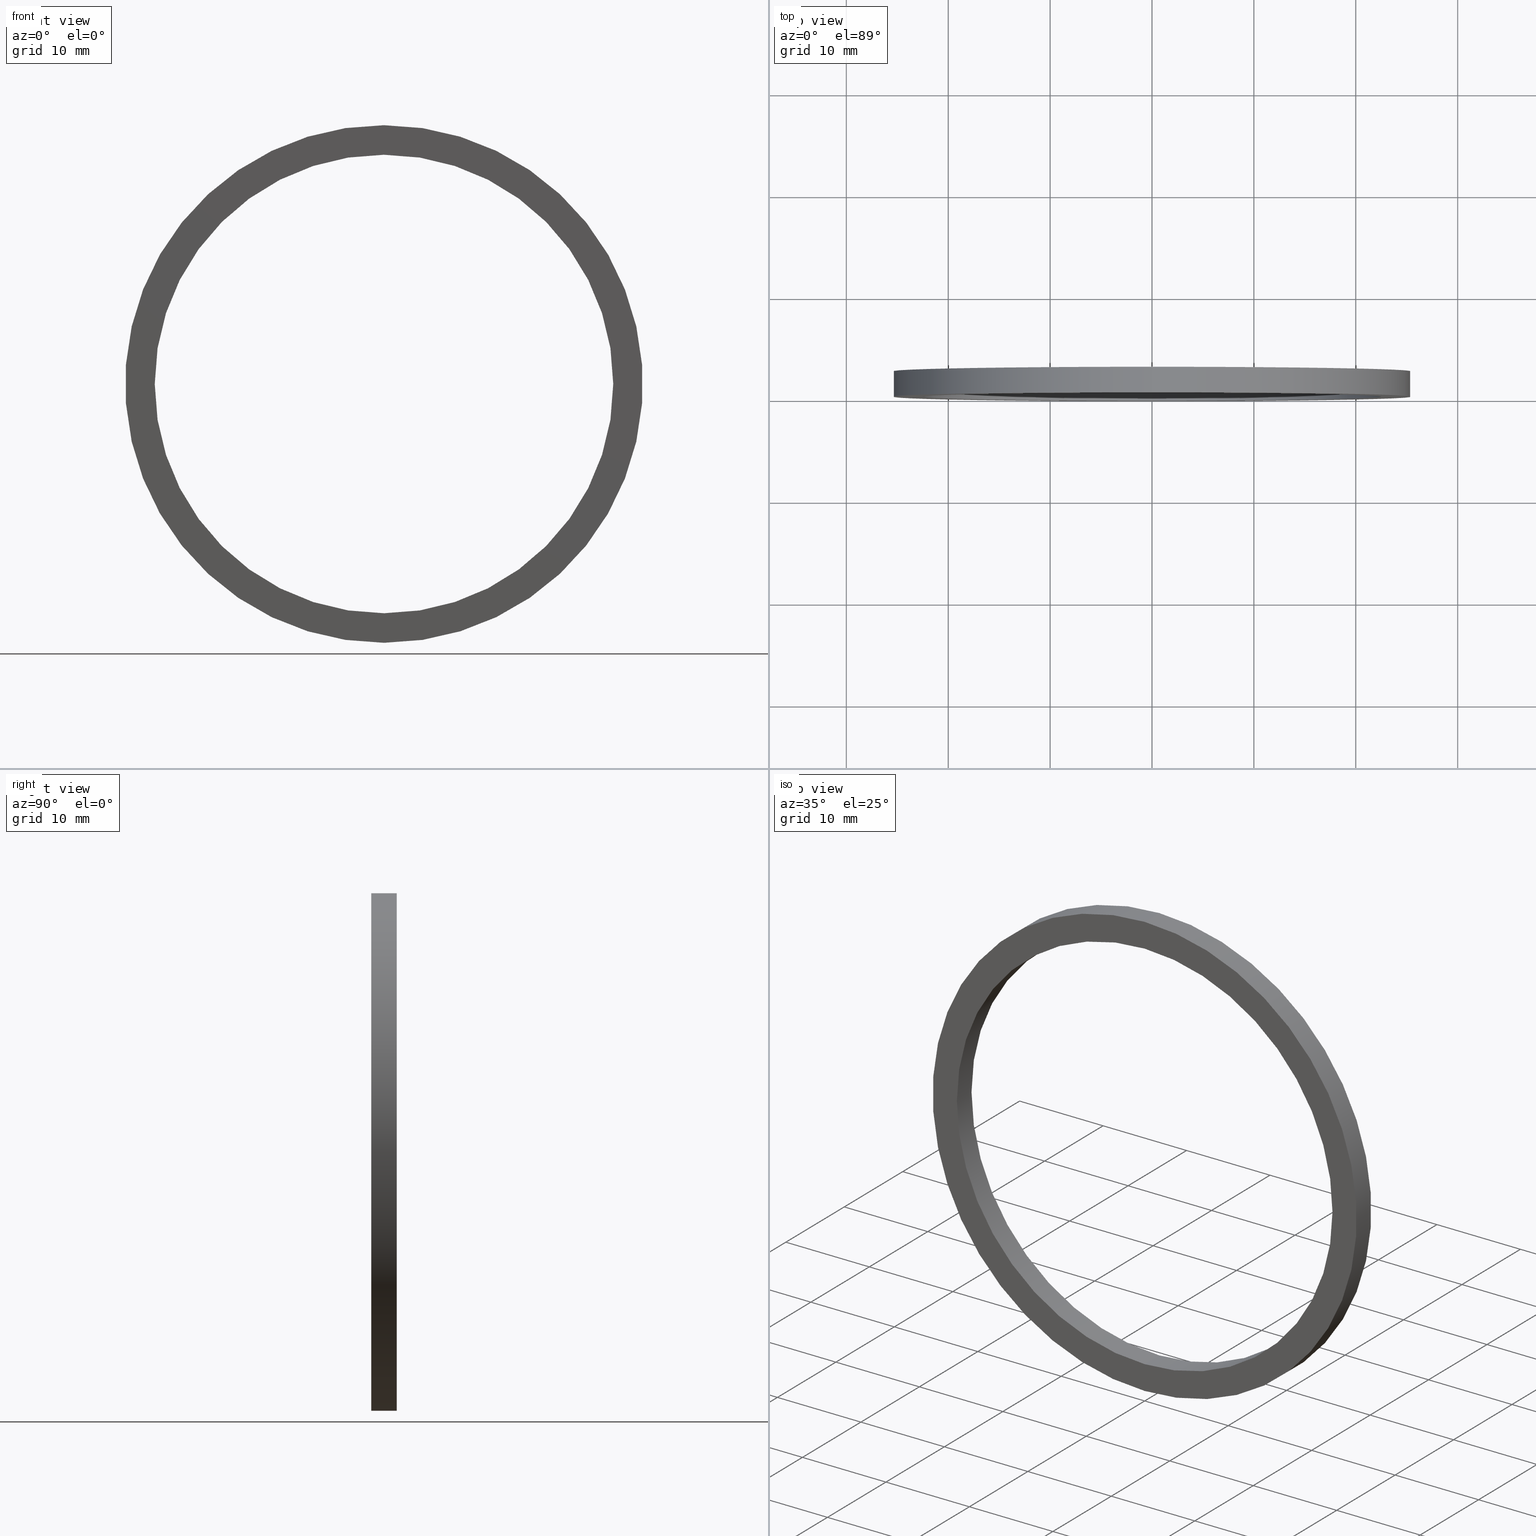
[diagram: canonical four-view strip — front | top / right | iso, engineering-drawing reading convention]
A machine part, canonical four-view strip (front | top / right | iso — engineering-drawing reading convention). The complete STEP part file that produces these views, byte-faithful:
ISO-10303-21;
HEADER;
FILE_DESCRIPTION (( 'STEP AP214' ),
    '1' );
FILE_NAME ('511001.STEP',
    '2019-09-12T07:37:06',
    ( '' ),
    ( '' ),
    'SwSTEP 2.0',
    'SolidWorks 2016',
    '' );
FILE_SCHEMA (( 'AUTOMOTIVE_DESIGN' ));
ENDSEC;

DATA;
#1 = DIRECTION ( 'NONE',  ( -0.0000000000000000000, 1.000000000000000000, -0.0000000000000000000 ) ) ;
#2 = DIRECTION ( 'NONE',  ( 1.000000000000000000, 0.0000000000000000000, 0.0000000000000000000 ) ) ;
#3 = FILL_AREA_STYLE ('',( #57 ) ) ;
#4 = CIRCLE ( 'NONE', #59, 25.40000000000000900 ) ;
#5 =( LENGTH_UNIT ( ) NAMED_UNIT ( * ) SI_UNIT ( .MILLI., .METRE. ) );
#6 = AXIS2_PLACEMENT_3D ( 'NONE', #29, #72, #202 ) ;
#7 = VERTEX_POINT ( 'NONE', #132 ) ;
#8 = COLOUR_RGB ( '',1.000000000000000000, 1.000000000000000000, 1.000000000000000000 ) ;
#9 = ORIENTED_EDGE ( 'NONE', *, *, #184, .F. ) ;
#10 = MECHANICAL_DESIGN_GEOMETRIC_PRESENTATION_REPRESENTATION (  '', ( #51 ), #73 ) ;
#11 = SURFACE_STYLE_FILL_AREA ( #135 ) ;
#12 = PRESENTATION_LAYER_ASSIGNMENT (  '', '', ( #51 ) ) ;
#13 = SURFACE_SIDE_STYLE ('',( #11 ) ) ;
#14 = DIRECTION ( 'NONE',  ( 0.0000000000000000000, 0.0000000000000000000, 1.000000000000000000 ) ) ;
#15 = DIRECTION ( 'NONE',  ( -0.0000000000000000000, 1.000000000000000000, -0.0000000000000000000 ) ) ;
#16 = UNCERTAINTY_MEASURE_WITH_UNIT (LENGTH_MEASURE( 1.000000000000000100E-005 ), #70, 'distance_accuracy_value', 'NONE');
#17 = PRESENTATION_LAYER_ASSIGNMENT (  '', '', ( #146 ) ) ;
#18 = SURFACE_SIDE_STYLE ('',( #187 ) ) ;
#19 = VECTOR ( 'NONE', #201, 1000.000000000000000 ) ;
#20 = VERTEX_POINT ( 'NONE', #79 ) ;
#21 = UNCERTAINTY_MEASURE_WITH_UNIT (LENGTH_MEASURE( 1.000000000000000100E-005 ), #224, 'distance_accuracy_value', 'NONE');
#22 = FACE_BOUND ( 'NONE', #42, .T. ) ;
#23 = SHAPE_DEFINITION_REPRESENTATION ( #168, #195 ) ;
#24 = PRESENTATION_STYLE_ASSIGNMENT (( #164 ) ) ;
#25 = ORIENTED_EDGE ( 'NONE', *, *, #133, .T. ) ;
#26 = CARTESIAN_POINT ( 'NONE',  ( 0.0000000000000000000, 0.0000000000000000000, 0.0000000000000000000 ) ) ;
#27 = CARTESIAN_POINT ( 'NONE',  ( 0.0000000000000000000, 2.500000000000002200, 0.0000000000000000000 ) ) ;
#28 = EDGE_LOOP ( 'NONE', ( #77, #183, #56, #238 ) ) ;
#29 = CARTESIAN_POINT ( 'NONE',  ( 0.0000000000000000000, 77.14414226561778800, 0.0000000000000000000 ) ) ;
#30 = MECHANICAL_DESIGN_GEOMETRIC_PRESENTATION_REPRESENTATION (  '', ( #146 ), #45 ) ;
#31 = CARTESIAN_POINT ( 'NONE',  ( 0.0000000000000000000, 2.500000000000002200, 0.0000000000000000000 ) ) ;
#32 = DIRECTION ( 'NONE',  ( -0.0000000000000000000, 1.000000000000000000, -0.0000000000000000000 ) ) ;
#33 = DIRECTION ( 'NONE',  ( 0.0000000000000000000, 0.0000000000000000000, 1.000000000000000000 ) ) ;
#34 = PRODUCT_RELATED_PRODUCT_CATEGORY ( 'part', '', ( #234 ) ) ;
#35 = DIRECTION ( 'NONE',  ( 0.0000000000000000000, 0.0000000000000000000, 1.000000000000000000 ) ) ;
#36 =( LENGTH_UNIT ( ) NAMED_UNIT ( * ) SI_UNIT ( .MILLI., .METRE. ) );
#37 = AXIS2_PLACEMENT_3D ( 'NONE', #229, #108, #110 ) ;
#38 = DIRECTION ( 'NONE',  ( 0.0000000000000000000, 0.0000000000000000000, 1.000000000000000000 ) ) ;
#39 = VERTEX_POINT ( 'NONE', #158 ) ;
#40 = EDGE_CURVE ( 'NONE', #20, #39, #123, .T. ) ;
#41 = MANIFOLD_SOLID_BREP ( '��ת1', #88 ) ;
#42 = EDGE_LOOP ( 'NONE', ( #86, #9 ) ) ;
#43 = PRODUCT_DEFINITION_CONTEXT ( 'detailed design', #171, 'design' ) ;
#44 = LINE ( 'NONE', #85, #131 ) ;
#45 =( GEOMETRIC_REPRESENTATION_CONTEXT ( 3 ) GLOBAL_UNCERTAINTY_ASSIGNED_CONTEXT ( ( #21 ) ) GLOBAL_UNIT_ASSIGNED_CONTEXT ( ( #224, #222, #161 ) ) REPRESENTATION_CONTEXT ( 'NONE', 'WORKASPACE' ) );
#46 = ORIENTED_EDGE ( 'NONE', *, *, #64, .T. ) ;
#47 =( LENGTH_UNIT ( ) NAMED_UNIT ( * ) SI_UNIT ( .MILLI., .METRE. ) );
#48 =( GEOMETRIC_REPRESENTATION_CONTEXT ( 3 ) GLOBAL_UNCERTAINTY_ASSIGNED_CONTEXT ( ( #244 ) ) GLOBAL_UNIT_ASSIGNED_CONTEXT ( ( #36, #206, #90 ) ) REPRESENTATION_CONTEXT ( 'NONE', 'WORKASPACE' ) );
#49 = ADVANCED_FACE ( 'NONE', ( #105, #58 ), #134, .F. ) ;
#50 = ORIENTED_EDGE ( 'NONE', *, *, #160, .F. ) ;
#51 = STYLED_ITEM ( 'NONE', ( #178 ), #41 ) ;
#52 = PLANE ( 'NONE',  #207 ) ;
#53 = CARTESIAN_POINT ( 'NONE',  ( 0.0000000000000000000, 0.0000000000000000000, 0.0000000000000000000 ) ) ;
#54 = FILL_AREA_STYLE_COLOUR ( '', #8 ) ;
#55 = DIRECTION ( 'NONE',  ( 0.0000000000000000000, 0.0000000000000000000, 1.000000000000000000 ) ) ;
#56 = ORIENTED_EDGE ( 'NONE', *, *, #184, .T. ) ;
#57 = FILL_AREA_STYLE_COLOUR ( '', #130 ) ;
#58 = FACE_BOUND ( 'NONE', #124, .T. ) ;
#59 = AXIS2_PLACEMENT_3D ( 'NONE', #87, #102, #14 ) ;
#60 = DIRECTION ( 'NONE',  ( -0.0000000000000000000, 1.000000000000000000, -0.0000000000000000000 ) ) ;
#61 = STYLED_ITEM ( 'NONE', ( #125 ), #195 ) ;
#62 = FACE_OUTER_BOUND ( 'NONE', #28, .T. ) ;
#63 = COLOUR_RGB ( '',1.000000000000000000, 1.000000000000000000, 1.000000000000000000 ) ;
#64 = EDGE_CURVE ( 'NONE', #7, #165, #111, .T. ) ;
#65 = FILL_AREA_STYLE_COLOUR ( '', #63 ) ;
#66 = COLOUR_RGB ( '',1.000000000000000000, 1.000000000000000000, 1.000000000000000000 ) ;
#67 = AXIS2_PLACEMENT_3D ( 'NONE', #162, #15, #35 ) ;
#68 = ORIENTED_EDGE ( 'NONE', *, *, #216, .F. ) ;
#69 = DIRECTION ( 'NONE',  ( 0.0000000000000000000, 0.0000000000000000000, 1.000000000000000000 ) ) ;
#70 =( LENGTH_UNIT ( ) NAMED_UNIT ( * ) SI_UNIT ( .MILLI., .METRE. ) );
#71 = DIRECTION ( 'NONE',  ( 0.0000000000000000000, -0.0000000000000000000, -1.000000000000000000 ) ) ;
#72 = DIRECTION ( 'NONE',  ( -0.0000000000000000000, 1.000000000000000000, -0.0000000000000000000 ) ) ;
#73 =( GEOMETRIC_REPRESENTATION_CONTEXT ( 3 ) GLOBAL_UNCERTAINTY_ASSIGNED_CONTEXT ( ( #209 ) ) GLOBAL_UNIT_ASSIGNED_CONTEXT ( ( #47, #98, #100 ) ) REPRESENTATION_CONTEXT ( 'NONE', 'WORKASPACE' ) );
#74 = FACE_OUTER_BOUND ( 'NONE', #78, .T. ) ;
#75 = AXIS2_PLACEMENT_3D ( 'NONE', #217, #176, #177 ) ;
#76 = FACE_OUTER_BOUND ( 'NONE', #149, .T. ) ;
#77 = ORIENTED_EDGE ( 'NONE', *, *, #232, .F. ) ;
#78 = EDGE_LOOP ( 'NONE', ( #80, #119, #215, #68 ) ) ;
#79 = CARTESIAN_POINT ( 'NONE',  ( 0.0000000000000000000, 0.0000000000000000000, 25.40000000000000900 ) ) ;
#80 = ORIENTED_EDGE ( 'NONE', *, *, #133, .F. ) ;
#81 = CARTESIAN_POINT ( 'NONE',  ( 0.0000000000000000000, 77.14414226561778800, 0.0000000000000000000 ) ) ;
#82 = EDGE_CURVE ( 'NONE', #155, #7, #192, .T. ) ;
#83 = DIRECTION ( 'NONE',  ( -0.0000000000000000000, 1.000000000000000000, -0.0000000000000000000 ) ) ;
#84 = CARTESIAN_POINT ( 'NONE',  ( 22.50000000000001100, 2.499999999999999600, 0.0000000000000000000 ) ) ;
#85 = CARTESIAN_POINT ( 'NONE',  ( 0.0000000000000000000, 77.14414226561778800, 25.40000000000000900 ) ) ;
#86 = ORIENTED_EDGE ( 'NONE', *, *, #64, .F. ) ;
#87 = CARTESIAN_POINT ( 'NONE',  ( 0.0000000000000000000, 2.500000000000002200, 0.0000000000000000000 ) ) ;
#88 = CLOSED_SHELL ( 'NONE', ( #153, #128, #49, #150, #196, #156 ) ) ;
#89 =( NAMED_UNIT ( * ) PLANE_ANGLE_UNIT ( ) SI_UNIT ( $, .RADIAN. ) );
#90 =( NAMED_UNIT ( * ) SI_UNIT ( $, .STERADIAN. ) SOLID_ANGLE_UNIT ( ) );
#91 = ORIENTED_EDGE ( 'NONE', *, *, #160, .T. ) ;
#92 = AXIS2_PLACEMENT_3D ( 'NONE', #31, #1, #205 ) ;
#93 = CIRCLE ( 'NONE', #127, 22.50000000000001100 ) ;
#94 = AXIS2_PLACEMENT_3D ( 'NONE', #27, #157, #179 ) ;
#95 = STYLED_ITEM ( 'NONE', ( #24 ), #153 ) ;
#96 = VECTOR ( 'NONE', #83, 1000.000000000000000 ) ;
#97 = ORIENTED_EDGE ( 'NONE', *, *, #216, .T. ) ;
#98 =( NAMED_UNIT ( * ) PLANE_ANGLE_UNIT ( ) SI_UNIT ( $, .RADIAN. ) );
#99 = ORIENTED_EDGE ( 'NONE', *, *, #204, .F. ) ;
#100 =( NAMED_UNIT ( * ) SI_UNIT ( $, .STERADIAN. ) SOLID_ANGLE_UNIT ( ) );
#101 = DIRECTION ( 'NONE',  ( -0.0000000000000000000, 1.000000000000000000, -0.0000000000000000000 ) ) ;
#102 = DIRECTION ( 'NONE',  ( -0.0000000000000000000, 1.000000000000000000, -0.0000000000000000000 ) ) ;
#103 = CARTESIAN_POINT ( 'NONE',  ( 2.755455298081546000E-015, 77.14414226561778800, -22.50000000000001100 ) ) ;
#104 = SURFACE_SIDE_STYLE ('',( #154 ) ) ;
#105 = FACE_OUTER_BOUND ( 'NONE', #112, .T. ) ;
#106 = AXIS2_PLACEMENT_3D ( 'NONE', #81, #101, #69 ) ;
#107 = CARTESIAN_POINT ( 'NONE',  ( 3.110602869834278000E-015, 2.500000000000002200, -25.40000000000000900 ) ) ;
#108 = DIRECTION ( 'NONE',  ( -0.0000000000000000000, 1.000000000000000000, -0.0000000000000000000 ) ) ;
#109 = PRESENTATION_STYLE_ASSIGNMENT (( #243 ) ) ;
#110 = DIRECTION ( 'NONE',  ( 0.0000000000000000000, 0.0000000000000000000, 1.000000000000000000 ) ) ;
#111 = CIRCLE ( 'NONE', #94, 22.50000000000001100 ) ;
#112 = EDGE_LOOP ( 'NONE', ( #236, #99 ) ) ;
#113 = LINE ( 'NONE', #103, #159 ) ;
#114 = CIRCLE ( 'NONE', #37, 25.40000000000000900 ) ;
#115 = CARTESIAN_POINT ( 'NONE',  ( 0.0000000000000000000, 77.14414226561778800, 22.50000000000001100 ) ) ;
#116 = SURFACE_SIDE_STYLE ('',( #182 ) ) ;
#117 = PRESENTATION_LAYER_ASSIGNMENT (  '', '', ( #95 ) ) ;
#118 = DIRECTION ( 'NONE',  ( 0.0000000000000000000, -1.000000000000000000, 0.0000000000000000000 ) ) ;
#119 = ORIENTED_EDGE ( 'NONE', *, *, #204, .T. ) ;
#120 = CARTESIAN_POINT ( 'NONE',  ( 0.0000000000000000000, 0.0000000000000000000, 0.0000000000000000000 ) ) ;
#121 = CARTESIAN_POINT ( 'NONE',  ( 0.0000000000000000000, 0.0000000000000000000, 22.50000000000001100 ) ) ;
#122 = DIRECTION ( 'NONE',  ( -0.0000000000000000000, 1.000000000000000000, -0.0000000000000000000 ) ) ;
#123 = CIRCLE ( 'NONE', #199, 25.40000000000000900 ) ;
#124 = EDGE_LOOP ( 'NONE', ( #230, #193 ) ) ;
#125 = PRESENTATION_STYLE_ASSIGNMENT (( #170 ) ) ;
#126 = EDGE_LOOP ( 'NONE', ( #189, #147, #140, #46 ) ) ;
#127 = AXIS2_PLACEMENT_3D ( 'NONE', #188, #60, #210 ) ;
#128 = ADVANCED_FACE ( 'NONE', ( #76 ), #203, .T. ) ;
#129 = MECHANICAL_DESIGN_GEOMETRIC_PRESENTATION_REPRESENTATION (  '', ( #95 ), #237 ) ;
#130 = COLOUR_RGB ( '',1.000000000000000000, 1.000000000000000000, 1.000000000000000000 ) ;
#131 = VECTOR ( 'NONE', #122, 1000.000000000000000 ) ;
#132 = CARTESIAN_POINT ( 'NONE',  ( 0.0000000000000000000, 2.500000000000002200, 22.50000000000001100 ) ) ;
#133 = EDGE_CURVE ( 'NONE', #39, #233, #235, .T. ) ;
#134 = PLANE ( 'NONE',  #75 ) ;
#135 = FILL_AREA_STYLE ('',( #65 ) ) ;
#136 = DIRECTION ( 'NONE',  ( 0.0000000000000000000, 0.0000000000000000000, 1.000000000000000000 ) ) ;
#137 = PRESENTATION_LAYER_ASSIGNMENT (  '', '', ( #61 ) ) ;
#138 = CYLINDRICAL_SURFACE ( 'NONE', #6, 22.50000000000001100 ) ;
#139 = CARTESIAN_POINT ( 'NONE',  ( 0.0000000000000000000, 2.500000000000002200, 25.40000000000000900 ) ) ;
#140 = ORIENTED_EDGE ( 'NONE', *, *, #82, .T. ) ;
#141 =( NAMED_UNIT ( * ) SI_UNIT ( $, .STERADIAN. ) SOLID_ANGLE_UNIT ( ) );
#142 = DIRECTION ( 'NONE',  ( -0.0000000000000000000, 1.000000000000000000, -0.0000000000000000000 ) ) ;
#143 = DIRECTION ( 'NONE',  ( -0.0000000000000000000, 1.000000000000000000, -0.0000000000000000000 ) ) ;
#144 = APPLICATION_PROTOCOL_DEFINITION ( 'draft international standard', 'automotive_design', 1998, #171 ) ;
#145 = CARTESIAN_POINT ( 'NONE',  ( 2.755455298081546000E-015, 0.0000000000000000000, -22.50000000000001100 ) ) ;
#146 = STYLED_ITEM ( 'NONE', ( #109 ), #156 ) ;
#147 = ORIENTED_EDGE ( 'NONE', *, *, #211, .F. ) ;
#148 = CARTESIAN_POINT ( 'NONE',  ( 0.0000000000000000000, 0.0000000000000000000, 0.0000000000000000000 ) ) ;
#149 = EDGE_LOOP ( 'NONE', ( #200, #25, #50, #242 ) ) ;
#150 = ADVANCED_FACE ( 'NONE', ( #74 ), #151, .T. ) ;
#151 = CYLINDRICAL_SURFACE ( 'NONE', #67, 25.40000000000000900 ) ;
#152 = PRODUCT_DEFINITION ( 'δ֪', '', #163, #43 ) ;
#153 = ADVANCED_FACE ( 'NONE', ( #62 ), #198, .F. ) ;
#154 = SURFACE_STYLE_FILL_AREA ( #186 ) ;
#155 = VERTEX_POINT ( 'NONE', #121 ) ;
#156 = ADVANCED_FACE ( 'NONE', ( #212 ), #138, .F. ) ;
#157 = DIRECTION ( 'NONE',  ( -0.0000000000000000000, 1.000000000000000000, -0.0000000000000000000 ) ) ;
#158 = CARTESIAN_POINT ( 'NONE',  ( 3.110602869834278000E-015, 0.0000000000000000000, -25.40000000000000900 ) ) ;
#159 = VECTOR ( 'NONE', #143, 1000.000000000000000 ) ;
#160 = EDGE_CURVE ( 'NONE', #175, #233, #4, .T. ) ;
#161 =( NAMED_UNIT ( * ) SI_UNIT ( $, .STERADIAN. ) SOLID_ANGLE_UNIT ( ) );
#162 = CARTESIAN_POINT ( 'NONE',  ( 0.0000000000000000000, 77.14414226561778800, 0.0000000000000000000 ) ) ;
#163 = PRODUCT_DEFINITION_FORMATION_WITH_SPECIFIED_SOURCE ( '�κ�', '', #234, .NOT_KNOWN. ) ;
#164 = SURFACE_STYLE_USAGE ( .BOTH. , #116 ) ;
#165 = VERTEX_POINT ( 'NONE', #166 ) ;
#166 = CARTESIAN_POINT ( 'NONE',  ( 2.755455298081546000E-015, 2.500000000000002200, -22.50000000000001100 ) ) ;
#167 = FACE_OUTER_BOUND ( 'NONE', #213, .T. ) ;
#168 = PRODUCT_DEFINITION_SHAPE ( 'NONE', 'NONE',  #152 ) ;
#169 = AXIS2_PLACEMENT_3D ( 'NONE', #148, #38, #2 ) ;
#170 = SURFACE_STYLE_USAGE ( .BOTH. , #18 ) ;
#171 = APPLICATION_CONTEXT ( 'automotive_design' ) ;
#172 = AXIS2_PLACEMENT_3D ( 'NONE', #53, #185, #55 ) ;
#173 = EDGE_CURVE ( 'NONE', #223, #165, #113, .T. ) ;
#174 = CIRCLE ( 'NONE', #172, 25.40000000000000900 ) ;
#175 = VERTEX_POINT ( 'NONE', #139 ) ;
#176 = DIRECTION ( 'NONE',  ( -0.0000000000000000000, 1.000000000000000000, 0.0000000000000000000 ) ) ;
#177 = DIRECTION ( 'NONE',  ( 0.0000000000000000000, 0.0000000000000000000, 1.000000000000000000 ) ) ;
#178 = PRESENTATION_STYLE_ASSIGNMENT (( #218 ) ) ;
#179 = DIRECTION ( 'NONE',  ( 0.0000000000000000000, 0.0000000000000000000, 1.000000000000000000 ) ) ;
#180 = CARTESIAN_POINT ( 'NONE',  ( 3.110602869834278000E-015, 77.14414226561778800, -25.40000000000000900 ) ) ;
#181 =( NAMED_UNIT ( * ) PLANE_ANGLE_UNIT ( ) SI_UNIT ( $, .RADIAN. ) );
#182 = SURFACE_STYLE_FILL_AREA ( #239 ) ;
#183 = ORIENTED_EDGE ( 'NONE', *, *, #173, .T. ) ;
#184 = EDGE_CURVE ( 'NONE', #165, #7, #220, .T. ) ;
#185 = DIRECTION ( 'NONE',  ( -0.0000000000000000000, 1.000000000000000000, -0.0000000000000000000 ) ) ;
#186 = FILL_AREA_STYLE ('',( #54 ) ) ;
#187 = SURFACE_STYLE_FILL_AREA ( #3 ) ;
#188 = CARTESIAN_POINT ( 'NONE',  ( 0.0000000000000000000, 0.0000000000000000000, 0.0000000000000000000 ) ) ;
#189 = ORIENTED_EDGE ( 'NONE', *, *, #173, .F. ) ;
#190 = AXIS2_PLACEMENT_3D ( 'NONE', #225, #32, #136 ) ;
#191 = PRODUCT_CONTEXT ( 'NONE', #227, 'mechanical' ) ;
#192 = LINE ( 'NONE', #115, #96 ) ;
#193 = ORIENTED_EDGE ( 'NONE', *, *, #232, .T. ) ;
#194 = AXIS2_PLACEMENT_3D ( 'NONE', #120, #142, #33 ) ;
#195 = ADVANCED_BREP_SHAPE_REPRESENTATION ( '511001', ( #41, #169 ), #48 ) ;
#196 = ADVANCED_FACE ( 'NONE', ( #22, #167 ), #52, .F. ) ;
#197 = FILL_AREA_STYLE_COLOUR ( '', #66 ) ;
#198 = CYLINDRICAL_SURFACE ( 'NONE', #190, 22.50000000000001100 ) ;
#199 = AXIS2_PLACEMENT_3D ( 'NONE', #26, #240, #219 ) ;
#200 = ORIENTED_EDGE ( 'NONE', *, *, #40, .T. ) ;
#201 = DIRECTION ( 'NONE',  ( -0.0000000000000000000, 1.000000000000000000, -0.0000000000000000000 ) ) ;
#202 = DIRECTION ( 'NONE',  ( 0.0000000000000000000, 0.0000000000000000000, 1.000000000000000000 ) ) ;
#203 = CYLINDRICAL_SURFACE ( 'NONE', #106, 25.40000000000000900 ) ;
#204 = EDGE_CURVE ( 'NONE', #39, #20, #174, .T. ) ;
#205 = DIRECTION ( 'NONE',  ( 0.0000000000000000000, 0.0000000000000000000, 1.000000000000000000 ) ) ;
#206 =( NAMED_UNIT ( * ) PLANE_ANGLE_UNIT ( ) SI_UNIT ( $, .RADIAN. ) );
#207 = AXIS2_PLACEMENT_3D ( 'NONE', #84, #118, #71 ) ;
#208 = APPLICATION_PROTOCOL_DEFINITION ( 'draft international standard', 'automotive_design', 1998, #227 ) ;
#209 = UNCERTAINTY_MEASURE_WITH_UNIT (LENGTH_MEASURE( 1.000000000000000100E-005 ), #47, 'distance_accuracy_value', 'NONE');
#210 = DIRECTION ( 'NONE',  ( 0.0000000000000000000, 0.0000000000000000000, 1.000000000000000000 ) ) ;
#211 = EDGE_CURVE ( 'NONE', #155, #223, #241, .T. ) ;
#212 = FACE_OUTER_BOUND ( 'NONE', #126, .T. ) ;
#213 = EDGE_LOOP ( 'NONE', ( #91, #97 ) ) ;
#214 = MECHANICAL_DESIGN_GEOMETRIC_PRESENTATION_REPRESENTATION (  '', ( #61 ), #231 ) ;
#215 = ORIENTED_EDGE ( 'NONE', *, *, #221, .T. ) ;
#216 = EDGE_CURVE ( 'NONE', #233, #175, #114, .T. ) ;
#217 = CARTESIAN_POINT ( 'NONE',  ( 22.50000000000001100, -1.836970198721023800E-016, 0.0000000000000000000 ) ) ;
#218 = SURFACE_STYLE_USAGE ( .BOTH. , #13 ) ;
#219 = DIRECTION ( 'NONE',  ( 0.0000000000000000000, 0.0000000000000000000, 1.000000000000000000 ) ) ;
#220 = CIRCLE ( 'NONE', #92, 22.50000000000001100 ) ;
#221 = EDGE_CURVE ( 'NONE', #20, #175, #44, .T. ) ;
#222 =( NAMED_UNIT ( * ) PLANE_ANGLE_UNIT ( ) SI_UNIT ( $, .RADIAN. ) );
#223 = VERTEX_POINT ( 'NONE', #145 ) ;
#224 =( LENGTH_UNIT ( ) NAMED_UNIT ( * ) SI_UNIT ( .MILLI., .METRE. ) );
#225 = CARTESIAN_POINT ( 'NONE',  ( 0.0000000000000000000, 77.14414226561778800, 0.0000000000000000000 ) ) ;
#226 =( NAMED_UNIT ( * ) SI_UNIT ( $, .STERADIAN. ) SOLID_ANGLE_UNIT ( ) );
#227 = APPLICATION_CONTEXT ( 'automotive_design' ) ;
#228 = UNCERTAINTY_MEASURE_WITH_UNIT (LENGTH_MEASURE( 1.000000000000000100E-005 ), #5, 'distance_accuracy_value', 'NONE');
#229 = CARTESIAN_POINT ( 'NONE',  ( 0.0000000000000000000, 2.500000000000002200, 0.0000000000000000000 ) ) ;
#230 = ORIENTED_EDGE ( 'NONE', *, *, #211, .T. ) ;
#231 =( GEOMETRIC_REPRESENTATION_CONTEXT ( 3 ) GLOBAL_UNCERTAINTY_ASSIGNED_CONTEXT ( ( #228 ) ) GLOBAL_UNIT_ASSIGNED_CONTEXT ( ( #5, #89, #226 ) ) REPRESENTATION_CONTEXT ( 'NONE', 'WORKASPACE' ) );
#232 = EDGE_CURVE ( 'NONE', #223, #155, #93, .T. ) ;
#233 = VERTEX_POINT ( 'NONE', #107 ) ;
#234 = PRODUCT ( '511001', '511001', '', ( #191 ) ) ;
#235 = LINE ( 'NONE', #180, #19 ) ;
#236 = ORIENTED_EDGE ( 'NONE', *, *, #40, .F. ) ;
#237 =( GEOMETRIC_REPRESENTATION_CONTEXT ( 3 ) GLOBAL_UNCERTAINTY_ASSIGNED_CONTEXT ( ( #16 ) ) GLOBAL_UNIT_ASSIGNED_CONTEXT ( ( #70, #181, #141 ) ) REPRESENTATION_CONTEXT ( 'NONE', 'WORKASPACE' ) );
#238 = ORIENTED_EDGE ( 'NONE', *, *, #82, .F. ) ;
#239 = FILL_AREA_STYLE ('',( #197 ) ) ;
#240 = DIRECTION ( 'NONE',  ( -0.0000000000000000000, 1.000000000000000000, -0.0000000000000000000 ) ) ;
#241 = CIRCLE ( 'NONE', #194, 22.50000000000001100 ) ;
#242 = ORIENTED_EDGE ( 'NONE', *, *, #221, .F. ) ;
#243 = SURFACE_STYLE_USAGE ( .BOTH. , #104 ) ;
#244 = UNCERTAINTY_MEASURE_WITH_UNIT (LENGTH_MEASURE( 1.000000000000000100E-005 ), #36, 'distance_accuracy_value', 'NONE');
ENDSEC;
END-ISO-10303-21;
